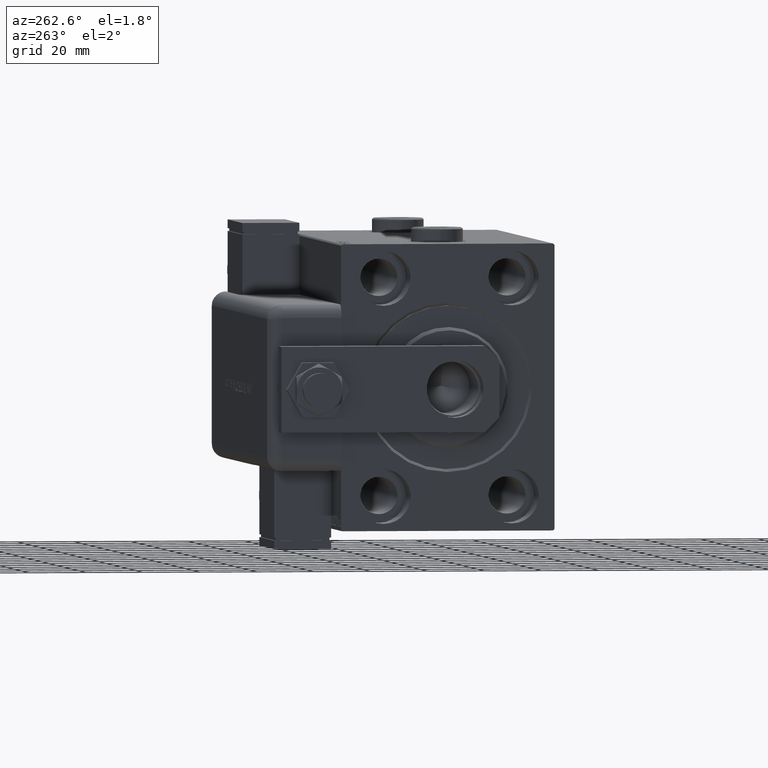
[diagram: clean part render]
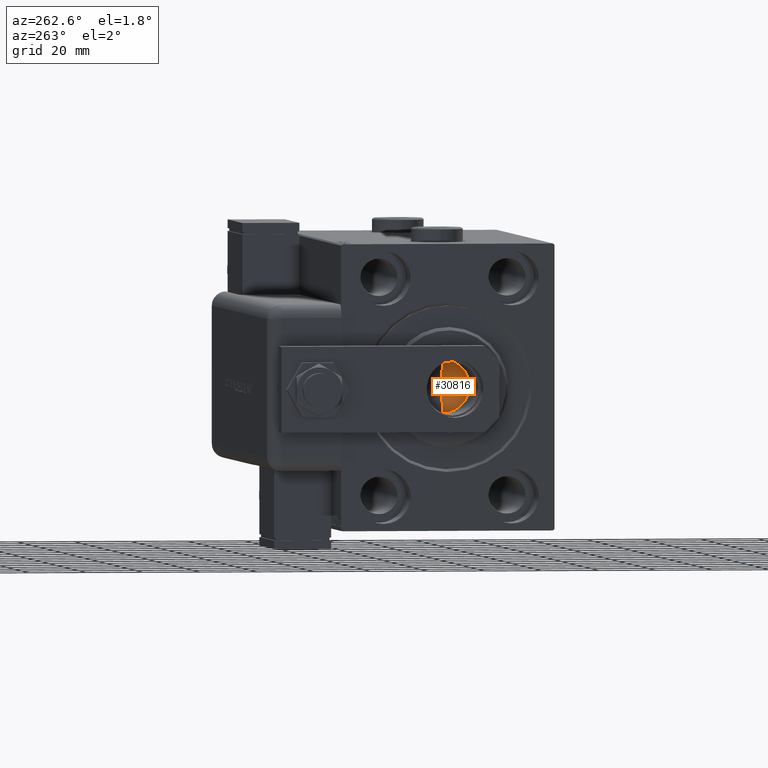
[diagram: same view with one face highlighted and labeled with its STEP entity id]
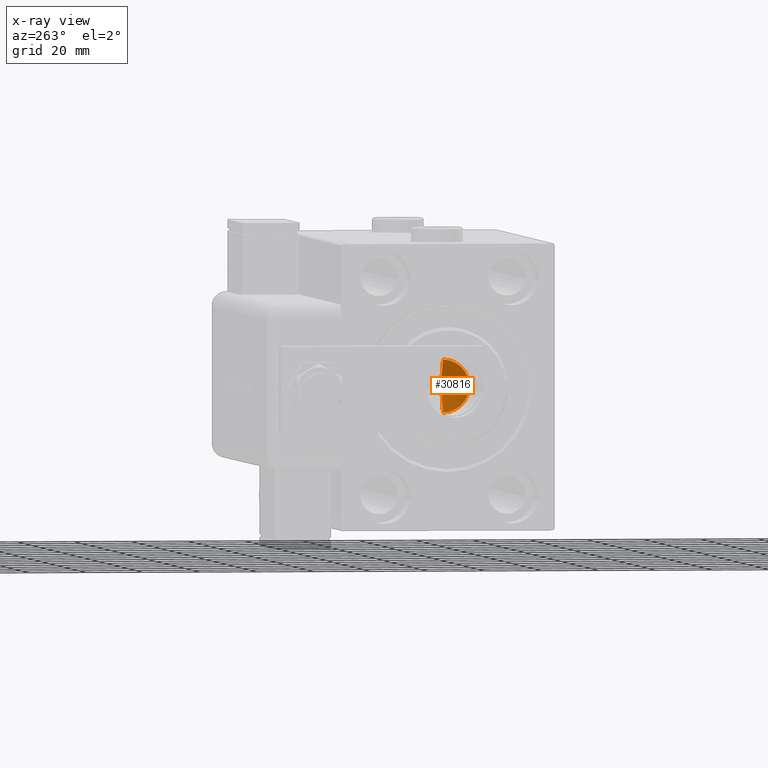
[diagram: x-ray of the same camera — body ghosted, the highlighted face saturated]
A machine part, auxiliary view. The second image highlights one B-rep face of the part: STEP entity #30816.
The next image is the same camera in x-ray: the body ghosted, the highlighted face saturated — about 1% of this face is hidden behind the body in this view.
In plain terms, the highlighted conical surface has half-angle 59 deg.
Its self-contained STEP definition (entity closure, byte-faithful):
#789 = CARTESIAN_POINT ( 'NONE',  ( 9.249999999999994671, 0.000000000000000000, 126.0000000000000284 ) ) ;
#1279 = CARTESIAN_POINT ( 'NONE',  ( 0.000000000000000000, 0.000000000000000000, 126.0000000000000284 ) ) ;
#2269 = DIRECTION ( 'NONE',  ( -0.8571673007021113344, 1.049727191138617463E-16, 0.5150380749100558209 ) ) ;
#4712 = EDGE_CURVE ( 'NONE', #47688, #38873, #55439, .T. ) ;
#4925 = LINE ( 'NONE', #46959, #24245 ) ;
#6609 = CARTESIAN_POINT ( 'NONE',  ( -9.249999999999994671, 1.132798289211300909E-15, 126.0000000000000284 ) ) ;
#16745 = ORIENTED_EDGE ( 'NONE', *, *, #20128, .T. ) ;
#18595 = CARTESIAN_POINT ( 'NONE',  ( 0.000000000000000000, 0.000000000000000000, 126.0000000000000284 ) ) ;
#20128 = EDGE_CURVE ( 'NONE', #39636, #47688, #35937, .T. ) ;
#20413 = DIRECTION ( 'NONE',  ( -0.000000000000000000, -0.000000000000000000, 1.000000000000000000 ) ) ;
#20688 = EDGE_CURVE ( 'NONE', #39636, #38873, #4925, .T. ) ;
#24245 = VECTOR ( 'NONE', #33332, 1000.000000000000000 ) ;
#30816 = ADVANCED_FACE ( 'NONE', ( #48230 ), #46284, .F. ) ;
#32133 = VECTOR ( 'NONE', #2269, 1000.000000000000000 ) ;
#32806 = DIRECTION ( 'NONE',  ( -0.000000000000000000, -0.000000000000000000, 1.000000000000000000 ) ) ;
#33332 = DIRECTION ( 'NONE',  ( 0.8571673007021113344, 0.000000000000000000, 0.5150380749100558209 ) ) ;
#35937 = LINE ( 'NONE', #6609, #32133 ) ;
#37652 = AXIS2_PLACEMENT_3D ( 'NONE', #18595, #32806, #51660 ) ;
#37962 = CARTESIAN_POINT ( 'NONE',  ( -6.793016015247754405E-15, 0.000000000000000000, 120.4420392739950785 ) ) ;
#38873 = VERTEX_POINT ( 'NONE', #789 ) ;
#39636 = VERTEX_POINT ( 'NONE', #37962 ) ;
#40497 = AXIS2_PLACEMENT_3D ( 'NONE', #1279, #20413, #57817 ) ;
#40859 = CARTESIAN_POINT ( 'NONE',  ( -9.249999999999994671, 1.132798289211300909E-15, 126.0000000000000284 ) ) ;
#41640 = ORIENTED_EDGE ( 'NONE', *, *, #20688, .F. ) ;
#46284 = CONICAL_SURFACE ( 'NONE', #40497, 9.249999999999994671, 1.029744258676652535 ) ;
#46959 = CARTESIAN_POINT ( 'NONE',  ( 9.249999999999994671, 0.000000000000000000, 126.0000000000000284 ) ) ;
#47688 = VERTEX_POINT ( 'NONE', #40859 ) ;
#48230 = FACE_OUTER_BOUND ( 'NONE', #56403, .T. ) ;
#51660 = DIRECTION ( 'NONE',  ( 1.000000000000000000, 0.000000000000000000, 0.000000000000000000 ) ) ;
#55439 = CIRCLE ( 'NONE', #37652, 9.249999999999994671 ) ;
#56403 = EDGE_LOOP ( 'NONE', ( #41640, #16745, #59686 ) ) ;
#57817 = DIRECTION ( 'NONE',  ( 1.000000000000000000, 0.000000000000000000, 0.000000000000000000 ) ) ;
#59686 = ORIENTED_EDGE ( 'NONE', *, *, #4712, .T. ) ;